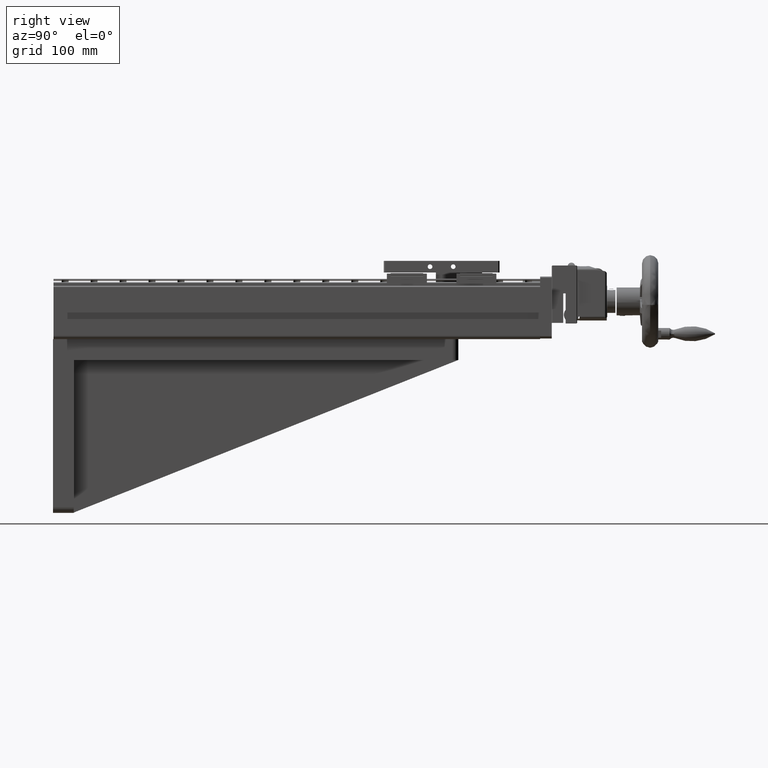
[diagram: clean part render]
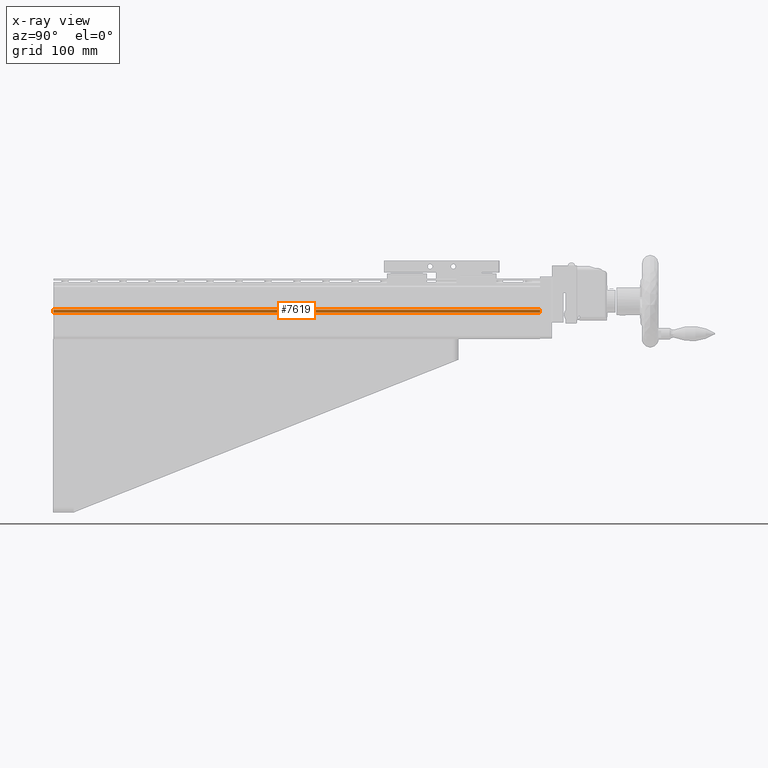
[diagram: x-ray — body ghosted, one internal face saturated and labeled with its STEP entity id]
A machine part, right view, then the same camera in x-ray: the body is ghosted and one INTERNAL B-rep face — a face not visible from any outside direction — is saturated and labeled: STEP entity #7619.
In plain terms, the highlighted planar face has unit normal (1, 0, -0).
Its self-contained STEP definition (entity closure, byte-faithful):
#1337 = VERTEX_POINT ( 'NONE', #15420 ) ;
#1775 = EDGE_LOOP ( 'NONE', ( #6595, #16380, #2836, #5557 ) ) ;
#2585 = DIRECTION ( 'NONE',  ( -2.355720492930367857E-16, 1.000000000000000000, -2.223285094848859850E-16 ) ) ;
#2836 = ORIENTED_EDGE ( 'NONE', *, *, #40956, .T. ) ;
#3457 = DIRECTION ( 'NONE',  ( 2.355720492930367857E-16, -1.000000000000000000, 2.223285094848859850E-16 ) ) ;
#4120 = CARTESIAN_POINT ( 'NONE',  ( -155.3853518124593904, -185.9865353911121133, 100.2500000000008384 ) ) ;
#4813 = DIRECTION ( 'NONE',  ( 1.029568210961139815E-14, 2.223285094848883023E-16, 1.000000000000000000 ) ) ;
#5057 = LINE ( 'NONE', #28247, #6213 ) ;
#5557 = ORIENTED_EDGE ( 'NONE', *, *, #32560, .T. ) ;
#6125 = VERTEX_POINT ( 'NONE', #10054 ) ;
#6213 = VECTOR ( 'NONE', #4813, 1000.000000000000000 ) ;
#6595 = ORIENTED_EDGE ( 'NONE', *, *, #13828, .F. ) ;
#7619 = ADVANCED_FACE ( 'NONE', ( #22535 ), #37621, .T. ) ;
#10054 = CARTESIAN_POINT ( 'NONE',  ( -155.3853518124595041, 234.0134646088877162, 100.2500000000008384 ) ) ;
#13213 = VECTOR ( 'NONE', #20739, 1000.000000000000000 ) ;
#13828 = EDGE_CURVE ( 'NONE', #1337, #25984, #39913, .T. ) ;
#14163 = CARTESIAN_POINT ( 'NONE',  ( -155.3853518124596178, 234.0134646088877162, 98.00000000000075318 ) ) ;
#14258 = VERTEX_POINT ( 'NONE', #14163 ) ;
#15420 = CARTESIAN_POINT ( 'NONE',  ( -155.3853518124595041, -185.9865353911121133, 98.00000000000075318 ) ) ;
#16380 = ORIENTED_EDGE ( 'NONE', *, *, #31479, .F. ) ;
#17516 = DIRECTION ( 'NONE',  ( 1.029568210961139815E-14, 2.223285094848883023E-16, 1.000000000000000000 ) ) ;
#18723 = CARTESIAN_POINT ( 'NONE',  ( -155.3853518124596178, 234.0134646088877162, 98.00000000000075318 ) ) ;
#20739 = DIRECTION ( 'NONE',  ( 2.355720492930367857E-16, -1.000000000000000000, 2.223285094848859850E-16 ) ) ;
#22535 = FACE_OUTER_BOUND ( 'NONE', #1775, .T. ) ;
#24514 = CARTESIAN_POINT ( 'NONE',  ( -155.3853518124596178, 234.0134646088877162, 98.00000000000075318 ) ) ;
#25558 = DIRECTION ( 'NONE',  ( 1.000000000000000000, 2.355720492930345177E-16, -1.029568210961140446E-14 ) ) ;
#25984 = VERTEX_POINT ( 'NONE', #4120 ) ;
#27875 = AXIS2_PLACEMENT_3D ( 'NONE', #18723, #25558, #2585 ) ;
#28247 = CARTESIAN_POINT ( 'NONE',  ( -155.3853518124596178, 234.0134646088877162, 98.00000000000075318 ) ) ;
#29091 = CARTESIAN_POINT ( 'NONE',  ( -155.3853518124595041, -185.9865353911121133, 98.00000000000075318 ) ) ;
#31479 = EDGE_CURVE ( 'NONE', #14258, #1337, #47415, .T. ) ;
#32560 = EDGE_CURVE ( 'NONE', #6125, #25984, #46278, .T. ) ;
#34536 = VECTOR ( 'NONE', #17516, 1000.000000000000000 ) ;
#36606 = VECTOR ( 'NONE', #3457, 1000.000000000000000 ) ;
#37621 = PLANE ( 'NONE',  #27875 ) ;
#39913 = LINE ( 'NONE', #29091, #34536 ) ;
#40956 = EDGE_CURVE ( 'NONE', #14258, #6125, #5057, .T. ) ;
#46278 = LINE ( 'NONE', #49818, #36606 ) ;
#47415 = LINE ( 'NONE', #24514, #13213 ) ;
#49818 = CARTESIAN_POINT ( 'NONE',  ( -155.3853518124595041, 234.0134646088877162, 100.2500000000008384 ) ) ;